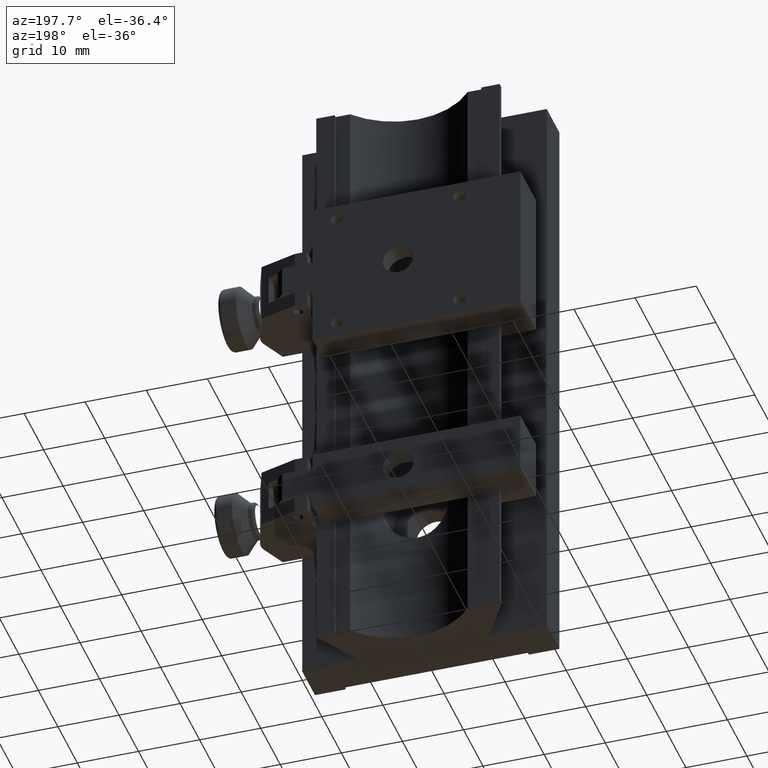
[diagram: clean part render]
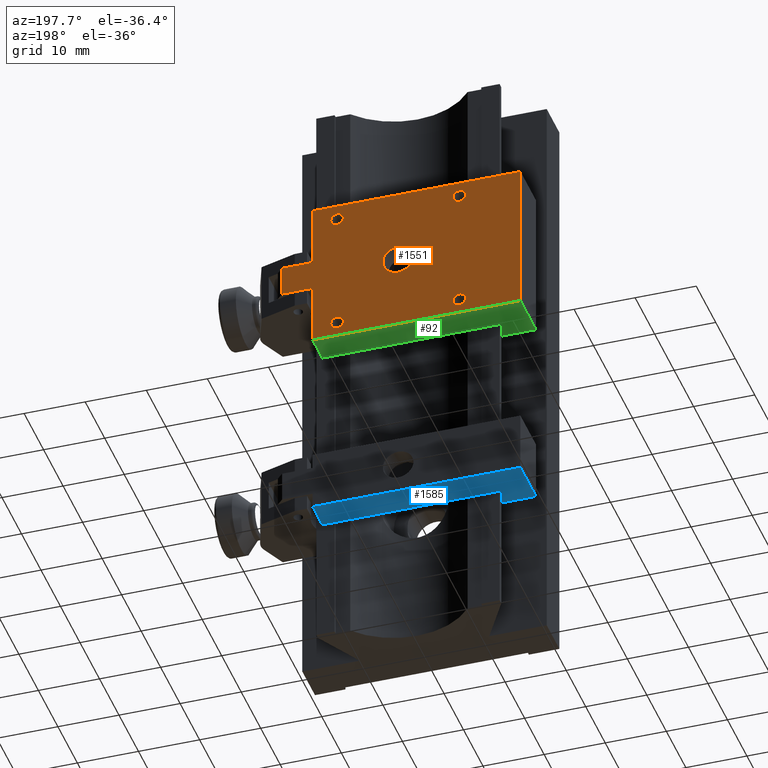
[diagram: same view with three faces highlighted in distinct colors, each labeled with its STEP entity id]
A machine part, auxiliary view with three faces highlighted in distinct colors.
Their STEP definitions:

[orange] entity #1551 — the highlighted planar face has unit normal (0, -1, 0).
#15 = CARTESIAN_POINT ( 'NONE',  ( -9.999999999999843681, 13.50000000000000888, 6.942492537779019202 ) ) ;
#74 = CIRCLE ( 'NONE', #4460, 1.024999999999998135 ) ;
#107 = CARTESIAN_POINT ( 'NONE',  ( -9.999999999999843681, 13.50000000000000888, 24.89249253777902382 ) ) ;
#113 = DIRECTION ( 'NONE',  ( -0.000000000000000000, 1.000000000000000000, -0.000000000000000000 ) ) ;
#137 = LINE ( 'NONE', #168, #4252 ) ;
#168 = CARTESIAN_POINT ( 'NONE',  ( 14.00000000000015987, 13.50000000000000888, 36.26450734103686813 ) ) ;
#185 = VERTEX_POINT ( 'NONE', #2773 ) ;
#203 = EDGE_LOOP ( 'NONE', ( #461, #3254, #2447, #1644, #4503, #3914, #796, #2810 ) ) ;
#240 = AXIS2_PLACEMENT_3D ( 'NONE', #926, #2581, #4212 ) ;
#261 = PLANE ( 'NONE',  #4695 ) ;
#281 = DIRECTION ( 'NONE',  ( 0.000000000000000000, 0.000000000000000000, 1.000000000000000000 ) ) ;
#287 = VERTEX_POINT ( 'NONE', #107 ) ;
#339 = VECTOR ( 'NONE', #1094, 1000.000000000000000 ) ;
#369 = CARTESIAN_POINT ( 'NONE',  ( -9.999999999999843681, 13.50000000000000888, 25.91749253777902240 ) ) ;
#372 = DIRECTION ( 'NONE',  ( 0.000000000000000000, 0.000000000000000000, 1.000000000000000000 ) ) ;
#382 = EDGE_CURVE ( 'NONE', #1160, #2202, #664, .T. ) ;
#400 = ORIENTED_EDGE ( 'NONE', *, *, #569, .F. ) ;
#441 = CARTESIAN_POINT ( 'NONE',  ( -9.999999999999843681, 13.50000000000000888, 4.892492537779022932 ) ) ;
#461 = ORIENTED_EDGE ( 'NONE', *, *, #3417, .T. ) ;
#472 = ORIENTED_EDGE ( 'NONE', *, *, #783, .F. ) ;
#505 = DIRECTION ( 'NONE',  ( -1.000000000000000000, 0.000000000000000000, 0.000000000000000000 ) ) ;
#532 = LINE ( 'NONE', #2241, #2472 ) ;
#569 = EDGE_CURVE ( 'NONE', #4613, #1955, #1746, .T. ) ;
#657 = FACE_BOUND ( 'NONE', #2547, .T. ) ;
#664 = LINE ( 'NONE', #4680, #1796 ) ;
#667 = EDGE_CURVE ( 'NONE', #2940, #2584, #4074, .T. ) ;
#680 = ORIENTED_EDGE ( 'NONE', *, *, #2009, .F. ) ;
#716 = VERTEX_POINT ( 'NONE', #3395 ) ;
#775 = VECTOR ( 'NONE', #1851, 1000.000000000000000 ) ;
#783 = EDGE_CURVE ( 'NONE', #2107, #4171, #5088, .T. ) ;
#796 = ORIENTED_EDGE ( 'NONE', *, *, #2221, .F. ) ;
#915 = CARTESIAN_POINT ( 'NONE',  ( 10.00000000000015632, 13.50000000000000888, 25.91749253777902240 ) ) ;
#921 = CARTESIAN_POINT ( 'NONE',  ( -19.99999999999985434, 13.50000000000000888, 28.41749253777902240 ) ) ;
#926 = CARTESIAN_POINT ( 'NONE',  ( -9.999999999999843681, 13.50000000000000888, 5.917492537779020623 ) ) ;
#963 = EDGE_CURVE ( 'NONE', #3287, #3119, #5099, .T. ) ;
#1092 = EDGE_CURVE ( 'NONE', #716, #3287, #4807, .T. ) ;
#1094 = DIRECTION ( 'NONE',  ( 0.000000000000000000, 0.000000000000000000, -1.000000000000000000 ) ) ;
#1113 = EDGE_LOOP ( 'NONE', ( #4844, #2718 ) ) ;
#1151 = DIRECTION ( 'NONE',  ( -1.000000000000000000, -0.000000000000000000, -0.000000000000000000 ) ) ;
#1160 = VERTEX_POINT ( 'NONE', #4376 ) ;
#1173 = CARTESIAN_POINT ( 'NONE',  ( 10.00000000000015632, 13.50000000000000888, 5.917492537779020623 ) ) ;
#1178 = AXIS2_PLACEMENT_3D ( 'NONE', #3006, #2313, #5069 ) ;
#1183 = CARTESIAN_POINT ( 'NONE',  ( 10.00000000000015632, 13.50000000000000888, 5.917492537779020623 ) ) ;
#1185 = VERTEX_POINT ( 'NONE', #441 ) ;
#1258 = DIRECTION ( 'NONE',  ( -0.000000000000000000, 1.000000000000000000, -0.000000000000000000 ) ) ;
#1340 = DIRECTION ( 'NONE',  ( 1.000000000000000000, 0.000000000000000000, -0.000000000000000000 ) ) ;
#1378 = DIRECTION ( 'NONE',  ( -0.000000000000000000, -0.000000000000000000, -1.000000000000000000 ) ) ;
#1384 = AXIS2_PLACEMENT_3D ( 'NONE', #1173, #5260, #2876 ) ;
#1397 = EDGE_CURVE ( 'NONE', #4314, #1185, #4360, .T. ) ;
#1419 = CARTESIAN_POINT ( 'NONE',  ( 10.00000000000015632, 13.50000000000000888, 6.942492537779019202 ) ) ;
#1423 = CARTESIAN_POINT ( 'NONE',  ( 14.00000000000015987, 13.50000000000000888, 13.41749253777902240 ) ) ;
#1442 = EDGE_CURVE ( 'NONE', #287, #3578, #5127, .T. ) ;
#1520 = CARTESIAN_POINT ( 'NONE',  ( -9.999999999999843681, 13.50000000000000888, 25.91749253777902240 ) ) ;
#1551 = ADVANCED_FACE ( 'NONE', ( #4728, #4757, #2714, #4347, #657, #2311 ), #261, .F. ) ;
#1631 = DIRECTION ( 'NONE',  ( 0.000000000000000000, 0.000000000000000000, 1.000000000000000000 ) ) ;
#1638 = CARTESIAN_POINT ( 'NONE',  ( 10.00000000000015632, 13.50000000000000888, 26.94249253777902098 ) ) ;
#1644 = ORIENTED_EDGE ( 'NONE', *, *, #3086, .T. ) ;
#1648 = CARTESIAN_POINT ( 'NONE',  ( 10.00000000000015632, 13.50000000000000888, 25.91749253777902240 ) ) ;
#1661 = CARTESIAN_POINT ( 'NONE',  ( 10.00000000000015632, 13.50000000000000888, 24.89249253777902382 ) ) ;
#1676 = DIRECTION ( 'NONE',  ( -0.000000000000000000, 1.000000000000000000, -0.000000000000000000 ) ) ;
#1708 = VERTEX_POINT ( 'NONE', #2192 ) ;
#1746 = CIRCLE ( 'NONE', #4759, 2.499999999999998668 ) ;
#1757 = CARTESIAN_POINT ( 'NONE',  ( 14.00000000000015987, 13.50000000000000888, 3.417492537779020179 ) ) ;
#1769 = AXIS2_PLACEMENT_3D ( 'NONE', #1648, #1676, #3286 ) ;
#1796 = VECTOR ( 'NONE', #3432, 1000.000000000000000 ) ;
#1806 = ORIENTED_EDGE ( 'NONE', *, *, #2597, .F. ) ;
#1851 = DIRECTION ( 'NONE',  ( -0.000000000000000000, -0.000000000000000000, 1.000000000000000000 ) ) ;
#1906 = CARTESIAN_POINT ( 'NONE',  ( -19.99999999999985434, 13.50000000000000888, 28.41749253777902240 ) ) ;
#1955 = VERTEX_POINT ( 'NONE', #3812 ) ;
#1972 = DIRECTION ( 'NONE',  ( 0.000000000000000000, 0.000000000000000000, 1.000000000000000000 ) ) ;
#2009 = EDGE_CURVE ( 'NONE', #1955, #4613, #2050, .T. ) ;
#2050 = CIRCLE ( 'NONE', #1178, 2.499999999999998668 ) ;
#2056 = CARTESIAN_POINT ( 'NONE',  ( -19.99999999999985434, 13.50000000000000888, 3.417492537779020179 ) ) ;
#2107 = VERTEX_POINT ( 'NONE', #1419 ) ;
#2192 = CARTESIAN_POINT ( 'NONE',  ( 14.00000000000015987, 13.50000000000000888, 18.41749253777901885 ) ) ;
#2202 = VERTEX_POINT ( 'NONE', #2056 ) ;
#2221 = EDGE_CURVE ( 'NONE', #185, #1160, #2970, .T. ) ;
#2241 = CARTESIAN_POINT ( 'NONE',  ( 14.00000000000015987, 13.50000000000000888, 18.41749253777901885 ) ) ;
#2293 = CARTESIAN_POINT ( 'NONE',  ( 19.00000000000015987, 13.50000000000000888, 28.41749253777902240 ) ) ;
#2311 = FACE_OUTER_BOUND ( 'NONE', #203, .T. ) ;
#2313 = DIRECTION ( 'NONE',  ( -0.000000000000000000, 1.000000000000000000, -0.000000000000000000 ) ) ;
#2413 = DIRECTION ( 'NONE',  ( 0.000000000000000000, 0.000000000000000000, 1.000000000000000000 ) ) ;
#2447 = ORIENTED_EDGE ( 'NONE', *, *, #963, .T. ) ;
#2472 = VECTOR ( 'NONE', #1340, 1000.000000000000000 ) ;
#2479 = EDGE_CURVE ( 'NONE', #4171, #2107, #3688, .T. ) ;
#2547 = EDGE_LOOP ( 'NONE', ( #680, #400 ) ) ;
#2550 = CARTESIAN_POINT ( 'NONE',  ( 1.564312745376994890E-13, 13.50000000000000888, 13.41749253777902062 ) ) ;
#2581 = DIRECTION ( 'NONE',  ( -0.000000000000000000, 1.000000000000000000, -0.000000000000000000 ) ) ;
#2584 = VERTEX_POINT ( 'NONE', #1661 ) ;
#2597 = EDGE_CURVE ( 'NONE', #1185, #4314, #3213, .T. ) ;
#2598 = DIRECTION ( 'NONE',  ( 0.000000000000000000, 0.000000000000000000, 1.000000000000000000 ) ) ;
#2665 = CARTESIAN_POINT ( 'NONE',  ( -19.99999999999985434, 13.50000000000000888, 3.417492537779020179 ) ) ;
#2688 = DIRECTION ( 'NONE',  ( -0.000000000000000000, 1.000000000000000000, -0.000000000000000000 ) ) ;
#2714 = FACE_BOUND ( 'NONE', #4878, .T. ) ;
#2718 = ORIENTED_EDGE ( 'NONE', *, *, #1442, .F. ) ;
#2758 = ORIENTED_EDGE ( 'NONE', *, *, #1397, .F. ) ;
#2773 = CARTESIAN_POINT ( 'NONE',  ( 14.00000000000016165, 13.50000000000000888, 28.41749253777902240 ) ) ;
#2776 = LINE ( 'NONE', #4671, #775 ) ;
#2810 = ORIENTED_EDGE ( 'NONE', *, *, #3712, .F. ) ;
#2876 = DIRECTION ( 'NONE',  ( 0.000000000000000000, 0.000000000000000000, 1.000000000000000000 ) ) ;
#2940 = VERTEX_POINT ( 'NONE', #1638 ) ;
#2970 = LINE ( 'NONE', #921, #3958 ) ;
#3006 = CARTESIAN_POINT ( 'NONE',  ( 1.561251128379126385E-13, 13.50000000000000888, 15.91749253777902062 ) ) ;
#3086 = EDGE_CURVE ( 'NONE', #3119, #3985, #137, .T. ) ;
#3119 = VERTEX_POINT ( 'NONE', #3591 ) ;
#3201 = LINE ( 'NONE', #2665, #5073 ) ;
#3207 = DIRECTION ( 'NONE',  ( 0.000000000000000000, -0.000000000000000000, -1.000000000000000000 ) ) ;
#3213 = CIRCLE ( 'NONE', #4931, 1.024999999999998135 ) ;
#3254 = ORIENTED_EDGE ( 'NONE', *, *, #1092, .T. ) ;
#3286 = DIRECTION ( 'NONE',  ( 0.000000000000000000, 0.000000000000000000, 1.000000000000000000 ) ) ;
#3287 = VERTEX_POINT ( 'NONE', #3294 ) ;
#3294 = CARTESIAN_POINT ( 'NONE',  ( 19.00000000000015987, 13.50000000000000888, 13.41749253777902240 ) ) ;
#3369 = DIRECTION ( 'NONE',  ( -1.000000000000000000, -0.000000000000000000, -0.000000000000000000 ) ) ;
#3395 = CARTESIAN_POINT ( 'NONE',  ( 19.00000000000015987, 13.50000000000000888, 18.41749253777901885 ) ) ;
#3417 = EDGE_CURVE ( 'NONE', #1708, #716, #532, .T. ) ;
#3432 = DIRECTION ( 'NONE',  ( -0.000000000000000000, -0.000000000000000000, -1.000000000000000000 ) ) ;
#3493 = AXIS2_PLACEMENT_3D ( 'NONE', #1520, #2688, #281 ) ;
#3566 = CARTESIAN_POINT ( 'NONE',  ( 10.00000000000015632, 13.50000000000000888, 4.892492537779022932 ) ) ;
#3578 = VERTEX_POINT ( 'NONE', #4364 ) ;
#3591 = CARTESIAN_POINT ( 'NONE',  ( 14.00000000000015987, 13.50000000000000888, 13.41749253777902240 ) ) ;
#3627 = DIRECTION ( 'NONE',  ( 0.000000000000000000, -1.000000000000000000, 0.000000000000000000 ) ) ;
#3688 = CIRCLE ( 'NONE', #1384, 1.024999999999998135 ) ;
#3712 = EDGE_CURVE ( 'NONE', #1708, #185, #2776, .T. ) ;
#3723 = EDGE_CURVE ( 'NONE', #3985, #2202, #3201, .T. ) ;
#3760 = ORIENTED_EDGE ( 'NONE', *, *, #667, .F. ) ;
#3812 = CARTESIAN_POINT ( 'NONE',  ( 1.561251128379126385E-13, 13.50000000000000888, 18.41749253777901885 ) ) ;
#3914 = ORIENTED_EDGE ( 'NONE', *, *, #382, .F. ) ;
#3925 = VECTOR ( 'NONE', #505, 1000.000000000000000 ) ;
#3945 = AXIS2_PLACEMENT_3D ( 'NONE', #369, #4105, #1631 ) ;
#3948 = ORIENTED_EDGE ( 'NONE', *, *, #4069, .F. ) ;
#3958 = VECTOR ( 'NONE', #3369, 1000.000000000000000 ) ;
#3985 = VERTEX_POINT ( 'NONE', #1757 ) ;
#4069 = EDGE_CURVE ( 'NONE', #2584, #2940, #74, .T. ) ;
#4074 = CIRCLE ( 'NONE', #1769, 1.024999999999998135 ) ;
#4105 = DIRECTION ( 'NONE',  ( -0.000000000000000000, 1.000000000000000000, -0.000000000000000000 ) ) ;
#4121 = DIRECTION ( 'NONE',  ( -0.000000000000000000, 1.000000000000000000, -0.000000000000000000 ) ) ;
#4171 = VERTEX_POINT ( 'NONE', #3566 ) ;
#4212 = DIRECTION ( 'NONE',  ( 0.000000000000000000, 0.000000000000000000, 1.000000000000000000 ) ) ;
#4252 = VECTOR ( 'NONE', #1378, 1000.000000000000000 ) ;
#4290 = CIRCLE ( 'NONE', #3945, 1.024999999999998135 ) ;
#4314 = VERTEX_POINT ( 'NONE', #15 ) ;
#4316 = EDGE_CURVE ( 'NONE', #3578, #287, #4290, .T. ) ;
#4346 = EDGE_LOOP ( 'NONE', ( #3760, #3948 ) ) ;
#4347 = FACE_BOUND ( 'NONE', #4346, .T. ) ;
#4360 = CIRCLE ( 'NONE', #240, 1.024999999999998135 ) ;
#4364 = CARTESIAN_POINT ( 'NONE',  ( -9.999999999999843681, 13.50000000000000888, 26.94249253777902098 ) ) ;
#4376 = CARTESIAN_POINT ( 'NONE',  ( -19.99999999999985434, 13.50000000000000888, 28.41749253777902240 ) ) ;
#4460 = AXIS2_PLACEMENT_3D ( 'NONE', #915, #113, #2598 ) ;
#4503 = ORIENTED_EDGE ( 'NONE', *, *, #3723, .T. ) ;
#4534 = ORIENTED_EDGE ( 'NONE', *, *, #2479, .F. ) ;
#4613 = VERTEX_POINT ( 'NONE', #2550 ) ;
#4671 = CARTESIAN_POINT ( 'NONE',  ( 14.00000000000015987, 13.50000000000000888, -4.429522265478827769 ) ) ;
#4680 = CARTESIAN_POINT ( 'NONE',  ( -19.99999999999985434, 13.50000000000000888, 28.41749253777902240 ) ) ;
#4695 = AXIS2_PLACEMENT_3D ( 'NONE', #1906, #3627, #3207 ) ;
#4728 = FACE_BOUND ( 'NONE', #1113, .T. ) ;
#4757 = FACE_BOUND ( 'NONE', #4973, .T. ) ;
#4759 = AXIS2_PLACEMENT_3D ( 'NONE', #5273, #4121, #2413 ) ;
#4807 = LINE ( 'NONE', #2293, #339 ) ;
#4844 = ORIENTED_EDGE ( 'NONE', *, *, #4316, .F. ) ;
#4878 = EDGE_LOOP ( 'NONE', ( #472, #4534 ) ) ;
#4931 = AXIS2_PLACEMENT_3D ( 'NONE', #4940, #1258, #372 ) ;
#4940 = CARTESIAN_POINT ( 'NONE',  ( -9.999999999999843681, 13.50000000000000888, 5.917492537779020623 ) ) ;
#4973 = EDGE_LOOP ( 'NONE', ( #2758, #1806 ) ) ;
#5069 = DIRECTION ( 'NONE',  ( 0.000000000000000000, 0.000000000000000000, 1.000000000000000000 ) ) ;
#5073 = VECTOR ( 'NONE', #1151, 1000.000000000000000 ) ;
#5088 = CIRCLE ( 'NONE', #5176, 1.024999999999998135 ) ;
#5099 = LINE ( 'NONE', #1423, #3925 ) ;
#5127 = CIRCLE ( 'NONE', #3493, 1.024999999999998135 ) ;
#5176 = AXIS2_PLACEMENT_3D ( 'NONE', #1183, #5292, #1972 ) ;
#5260 = DIRECTION ( 'NONE',  ( -0.000000000000000000, 1.000000000000000000, -0.000000000000000000 ) ) ;
#5273 = CARTESIAN_POINT ( 'NONE',  ( 1.561251128379126385E-13, 13.50000000000000888, 15.91749253777902062 ) ) ;
#5292 = DIRECTION ( 'NONE',  ( -0.000000000000000000, 1.000000000000000000, -0.000000000000000000 ) ) ;

[blue] entity #1585 — the highlighted planar face has unit normal (-0, 0, 1).
#14 = LINE ( 'NONE', #1986, #2571 ) ;
#211 = ORIENTED_EDGE ( 'NONE', *, *, #4513, .T. ) ;
#216 = VERTEX_POINT ( 'NONE', #2044 ) ;
#393 = DIRECTION ( 'NONE',  ( -0.5000000000000041078, 0.8660254037844363761, 0.000000000000000000 ) ) ;
#466 = ORIENTED_EDGE ( 'NONE', *, *, #3130, .T. ) ;
#467 = VECTOR ( 'NONE', #2700, 1000.000000000000000 ) ;
#554 = LINE ( 'NONE', #4672, #4440 ) ;
#622 = LINE ( 'NONE', #644, #4411 ) ;
#644 = CARTESIAN_POINT ( 'NONE',  ( -15.49999999999999467, 8.500000000000007105, -28.88092557555970785 ) ) ;
#726 = VERTEX_POINT ( 'NONE', #2520 ) ;
#754 = DIRECTION ( 'NONE',  ( 1.000000000000000000, 0.000000000000000000, 0.000000000000000000 ) ) ;
#1003 = VERTEX_POINT ( 'NONE', #2124 ) ;
#1054 = LINE ( 'NONE', #2748, #3826 ) ;
#1135 = FACE_OUTER_BOUND ( 'NONE', #4368, .T. ) ;
#1407 = EDGE_CURVE ( 'NONE', #5186, #3992, #2176, .T. ) ;
#1429 = CARTESIAN_POINT ( 'NONE',  ( 14.00000000000000888, 13.50000000000000888, -28.88092557555970785 ) ) ;
#1461 = CARTESIAN_POINT ( 'NONE',  ( -20.00000000000000355, 13.50000000000000888, -28.88092557555970785 ) ) ;
#1585 = ADVANCED_FACE ( 'NONE', ( #1135 ), #4038, .F. ) ;
#1718 = CARTESIAN_POINT ( 'NONE',  ( 14.00000000000000888, 13.50000000000000888, -28.88092557555970785 ) ) ;
#1727 = CARTESIAN_POINT ( 'NONE',  ( -20.00000000000000355, 13.50000000000000888, -28.88092557555970785 ) ) ;
#1986 = CARTESIAN_POINT ( 'NONE',  ( -13.76794919243109838, 5.500000000000007105, -28.88092557555970785 ) ) ;
#2044 = CARTESIAN_POINT ( 'NONE',  ( -20.00000000000000355, 5.500000000000007105, -28.88092557555970785 ) ) ;
#2076 = EDGE_CURVE ( 'NONE', #216, #2952, #554, .T. ) ;
#2124 = CARTESIAN_POINT ( 'NONE',  ( 14.00000000000001066, 8.500000000000007105, -28.88092557555970785 ) ) ;
#2176 = LINE ( 'NONE', #3397, #3076 ) ;
#2186 = ORIENTED_EDGE ( 'NONE', *, *, #3192, .F. ) ;
#2322 = VECTOR ( 'NONE', #4649, 1000.000000000000000 ) ;
#2520 = CARTESIAN_POINT ( 'NONE',  ( -13.95096189432331713, 5.816987298107782145, -28.88092557555970785 ) ) ;
#2571 = VECTOR ( 'NONE', #393, 1000.000000000000000 ) ;
#2647 = CARTESIAN_POINT ( 'NONE',  ( -14.26794919243109305, 5.500000000000007105, -28.88092557555970785 ) ) ;
#2700 = DIRECTION ( 'NONE',  ( 0.000000000000000000, -1.000000000000000000, 0.000000000000000000 ) ) ;
#2715 = DIRECTION ( 'NONE',  ( 1.000000000000000000, 0.000000000000000000, 0.000000000000000000 ) ) ;
#2748 = CARTESIAN_POINT ( 'NONE',  ( -13.95096189432331713, 5.816987298107783033, -28.88092557555970785 ) ) ;
#2952 = VERTEX_POINT ( 'NONE', #2647 ) ;
#3076 = VECTOR ( 'NONE', #5037, 1000.000000000000000 ) ;
#3130 = EDGE_CURVE ( 'NONE', #726, #2952, #1054, .T. ) ;
#3192 = EDGE_CURVE ( 'NONE', #3992, #216, #5161, .T. ) ;
#3206 = EDGE_CURVE ( 'NONE', #4548, #1003, #622, .T. ) ;
#3348 = EDGE_CURVE ( 'NONE', #726, #4548, #14, .T. ) ;
#3397 = CARTESIAN_POINT ( 'NONE',  ( -20.00000000000000355, 13.50000000000000888, -28.88092557555970785 ) ) ;
#3602 = ORIENTED_EDGE ( 'NONE', *, *, #2076, .F. ) ;
#3759 = LINE ( 'NONE', #1718, #2322 ) ;
#3826 = VECTOR ( 'NONE', #5133, 1000.000000000000114 ) ;
#3905 = DIRECTION ( 'NONE',  ( 1.000000000000000000, 1.242535447991765058E-32, 0.000000000000000000 ) ) ;
#3992 = VERTEX_POINT ( 'NONE', #1727 ) ;
#4038 = PLANE ( 'NONE',  #5197 ) ;
#4368 = EDGE_LOOP ( 'NONE', ( #211, #4597, #4908, #466, #3602, #2186, #5070 ) ) ;
#4411 = VECTOR ( 'NONE', #3905, 1000.000000000000000 ) ;
#4438 = CARTESIAN_POINT ( 'NONE',  ( 5.204170427930421283E-15, 8.500000000000007105, -28.88092557555970785 ) ) ;
#4440 = VECTOR ( 'NONE', #2715, 1000.000000000000000 ) ;
#4513 = EDGE_CURVE ( 'NONE', #5186, #1003, #3759, .T. ) ;
#4548 = VERTEX_POINT ( 'NONE', #5068 ) ;
#4597 = ORIENTED_EDGE ( 'NONE', *, *, #3206, .F. ) ;
#4649 = DIRECTION ( 'NONE',  ( 1.170338304741205908E-16, -1.000000000000000000, 0.000000000000000000 ) ) ;
#4672 = CARTESIAN_POINT ( 'NONE',  ( -20.00000000000000355, 5.500000000000007105, -28.88092557555970785 ) ) ;
#4827 = DIRECTION ( 'NONE',  ( -0.000000000000000000, 0.000000000000000000, 1.000000000000000000 ) ) ;
#4908 = ORIENTED_EDGE ( 'NONE', *, *, #3348, .F. ) ;
#5037 = DIRECTION ( 'NONE',  ( -1.000000000000000000, -0.000000000000000000, -0.000000000000000000 ) ) ;
#5068 = CARTESIAN_POINT ( 'NONE',  ( -15.49999999999999467, 8.500000000000007105, -28.88092557555970785 ) ) ;
#5070 = ORIENTED_EDGE ( 'NONE', *, *, #1407, .F. ) ;
#5133 = DIRECTION ( 'NONE',  ( -0.7071067811865474617, -0.7071067811865474617, -0.000000000000000000 ) ) ;
#5161 = LINE ( 'NONE', #1461, #467 ) ;
#5186 = VERTEX_POINT ( 'NONE', #1429 ) ;
#5197 = AXIS2_PLACEMENT_3D ( 'NONE', #4438, #4827, #754 ) ;

[green] entity #92 — the highlighted planar face has unit normal (-0, 0, 1).
#32 = ORIENTED_EDGE ( 'NONE', *, *, #2218, .F. ) ;
#75 = LINE ( 'NONE', #3817, #3329 ) ;
#92 = ADVANCED_FACE ( 'NONE', ( #626 ), #1870, .F. ) ;
#228 = VERTEX_POINT ( 'NONE', #770 ) ;
#258 = ORIENTED_EDGE ( 'NONE', *, *, #4397, .T. ) ;
#295 = LINE ( 'NONE', #3394, #3780 ) ;
#340 = DIRECTION ( 'NONE',  ( 0.000000000000000000, -1.000000000000000000, 0.000000000000000000 ) ) ;
#367 = ORIENTED_EDGE ( 'NONE', *, *, #3918, .F. ) ;
#543 = ORIENTED_EDGE ( 'NONE', *, *, #2396, .F. ) ;
#578 = VECTOR ( 'NONE', #340, 1000.000000000000000 ) ;
#626 = FACE_OUTER_BOUND ( 'NONE', #4070, .T. ) ;
#770 = CARTESIAN_POINT ( 'NONE',  ( 14.00000000000016165, 8.500000000000007105, 3.417492537779020179 ) ) ;
#1029 = CARTESIAN_POINT ( 'NONE',  ( -13.95096189432317324, 5.816987298107793691, 3.417492537779020179 ) ) ;
#1120 = CARTESIAN_POINT ( 'NONE',  ( -19.99999999999985434, 5.500000000000007105, 3.417492537779020179 ) ) ;
#1151 = DIRECTION ( 'NONE',  ( -1.000000000000000000, -0.000000000000000000, -0.000000000000000000 ) ) ;
#1229 = ORIENTED_EDGE ( 'NONE', *, *, #1252, .F. ) ;
#1252 = EDGE_CURVE ( 'NONE', #2202, #3102, #3212, .T. ) ;
#1388 = DIRECTION ( 'NONE',  ( -0.5000000000000041078, 0.8660254037844363761, 0.000000000000000000 ) ) ;
#1639 = DIRECTION ( 'NONE',  ( 1.000000000000000000, 1.242535447991765058E-32, 0.000000000000000000 ) ) ;
#1656 = CARTESIAN_POINT ( 'NONE',  ( -14.26794919243095983, 5.500000000000007105, 3.417492537779020179 ) ) ;
#1738 = ORIENTED_EDGE ( 'NONE', *, *, #3723, .F. ) ;
#1757 = CARTESIAN_POINT ( 'NONE',  ( 14.00000000000015987, 13.50000000000000888, 3.417492537779020179 ) ) ;
#1870 = PLANE ( 'NONE',  #4013 ) ;
#1908 = VERTEX_POINT ( 'NONE', #4098 ) ;
#1921 = CARTESIAN_POINT ( 'NONE',  ( 1.561251128379126385E-13, 8.500000000000007105, 3.417492537779020179 ) ) ;
#2056 = CARTESIAN_POINT ( 'NONE',  ( -19.99999999999985434, 13.50000000000000888, 3.417492537779020179 ) ) ;
#2161 = VECTOR ( 'NONE', #2519, 1000.000000000000000 ) ;
#2202 = VERTEX_POINT ( 'NONE', #2056 ) ;
#2218 = EDGE_CURVE ( 'NONE', #3102, #3280, #4901, .T. ) ;
#2263 = ORIENTED_EDGE ( 'NONE', *, *, #2461, .T. ) ;
#2396 = EDGE_CURVE ( 'NONE', #4099, #1908, #295, .T. ) ;
#2461 = EDGE_CURVE ( 'NONE', #3985, #228, #3172, .T. ) ;
#2484 = CARTESIAN_POINT ( 'NONE',  ( -15.49999999999984368, 8.500000000000007105, 3.417492537779020179 ) ) ;
#2495 = CARTESIAN_POINT ( 'NONE',  ( -19.99999999999985434, 13.50000000000000888, 3.417492537779020179 ) ) ;
#2519 = DIRECTION ( 'NONE',  ( 1.000000000000000000, 0.000000000000000000, 0.000000000000000000 ) ) ;
#2665 = CARTESIAN_POINT ( 'NONE',  ( -19.99999999999985434, 13.50000000000000888, 3.417492537779020179 ) ) ;
#3102 = VERTEX_POINT ( 'NONE', #1120 ) ;
#3104 = DIRECTION ( 'NONE',  ( 1.000000000000000000, 0.000000000000000000, 0.000000000000000000 ) ) ;
#3172 = LINE ( 'NONE', #3835, #5320 ) ;
#3201 = LINE ( 'NONE', #2665, #5073 ) ;
#3212 = LINE ( 'NONE', #2495, #578 ) ;
#3280 = VERTEX_POINT ( 'NONE', #1656 ) ;
#3329 = VECTOR ( 'NONE', #4589, 1000.000000000000114 ) ;
#3394 = CARTESIAN_POINT ( 'NONE',  ( -13.76794919243094739, 5.500000000000007105, 3.417492537779020179 ) ) ;
#3607 = VECTOR ( 'NONE', #1639, 1000.000000000000000 ) ;
#3723 = EDGE_CURVE ( 'NONE', #3985, #2202, #3201, .T. ) ;
#3780 = VECTOR ( 'NONE', #1388, 1000.000000000000000 ) ;
#3817 = CARTESIAN_POINT ( 'NONE',  ( -13.95096189432317324, 5.816987298107793691, 3.417492537779020179 ) ) ;
#3835 = CARTESIAN_POINT ( 'NONE',  ( 14.00000000000015987, 13.50000000000000888, 3.417492537779020179 ) ) ;
#3918 = EDGE_CURVE ( 'NONE', #1908, #228, #4867, .T. ) ;
#3985 = VERTEX_POINT ( 'NONE', #1757 ) ;
#4013 = AXIS2_PLACEMENT_3D ( 'NONE', #1921, #5141, #3104 ) ;
#4070 = EDGE_LOOP ( 'NONE', ( #2263, #367, #543, #258, #32, #1229, #1738 ) ) ;
#4098 = CARTESIAN_POINT ( 'NONE',  ( -15.49999999999984368, 8.500000000000007105, 3.417492537779020179 ) ) ;
#4099 = VERTEX_POINT ( 'NONE', #1029 ) ;
#4209 = CARTESIAN_POINT ( 'NONE',  ( -19.99999999999985434, 5.500000000000007105, 3.417492537779020179 ) ) ;
#4397 = EDGE_CURVE ( 'NONE', #4099, #3280, #75, .T. ) ;
#4589 = DIRECTION ( 'NONE',  ( -0.7071067811865474617, -0.7071067811865474617, -0.000000000000000000 ) ) ;
#4838 = DIRECTION ( 'NONE',  ( 1.170338304741205908E-16, -1.000000000000000000, 0.000000000000000000 ) ) ;
#4867 = LINE ( 'NONE', #2484, #3607 ) ;
#4901 = LINE ( 'NONE', #4209, #2161 ) ;
#5073 = VECTOR ( 'NONE', #1151, 1000.000000000000000 ) ;
#5141 = DIRECTION ( 'NONE',  ( -0.000000000000000000, 0.000000000000000000, 1.000000000000000000 ) ) ;
#5320 = VECTOR ( 'NONE', #4838, 1000.000000000000000 ) ;